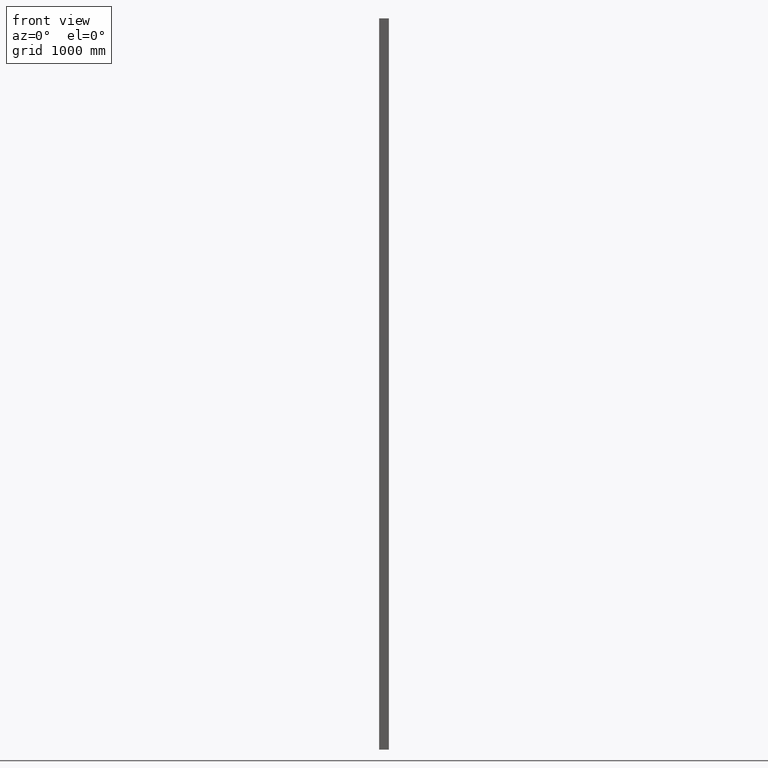
[diagram: clean part render]
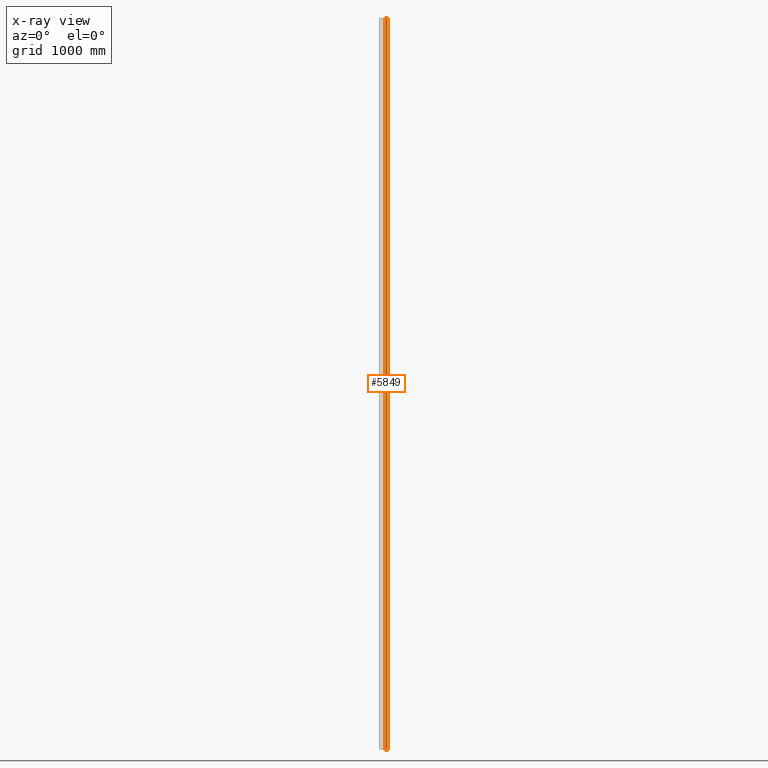
[diagram: x-ray — body ghosted, one internal face saturated and labeled with its STEP entity id]
A machine part, front view, then the same camera in x-ray: the body is ghosted and one INTERNAL B-rep face — a face not visible from any outside direction — is saturated and labeled: STEP entity #5849.
In plain terms, the highlighted cylindrical surface (edge-blend (fillet) strip) has radius 6.85 mm, axis along (0, 0, 1).
Its self-contained STEP definition (entity closure, byte-faithful):
#154 = CARTESIAN_POINT ( 'NONE',  ( 13.14999999999999900, 20.00000000000000000, -6000.000000000000000 ) ) ;
#156 = CARTESIAN_POINT ( 'NONE',  ( 26.85000000000000100, 20.00000000000000000, -6000.000000000000000 ) ) ;
#157 = CARTESIAN_POINT ( 'NONE',  ( 13.14999999999999900, 20.00000000000000000, 0.0000000000000000000 ) ) ;
#159 = CARTESIAN_POINT ( 'NONE',  ( 26.85000000000000100, 20.00000000000000000, 0.0000000000000000000 ) ) ;
#197 = VERTEX_POINT ( 'NONE', #154 ) ;
#199 = VERTEX_POINT ( 'NONE', #156 ) ;
#200 = VERTEX_POINT ( 'NONE', #157 ) ;
#202 = VERTEX_POINT ( 'NONE', #159 ) ;
#275 = ORIENTED_EDGE ( 'NONE', *, *, #4708, .F. ) ;
#276 = ORIENTED_EDGE ( 'NONE', *, *, #4703, .T. ) ;
#277 = ORIENTED_EDGE ( 'NONE', *, *, #5617, .T. ) ;
#572 = EDGE_LOOP ( 'NONE', ( #1052, #277, #276, #275 ) ) ;
#1052 = ORIENTED_EDGE ( 'NONE', *, *, #4691, .T. ) ;
#1582 = CARTESIAN_POINT ( 'NONE',  ( 20.00000000000000000, 20.00000000000000000, 0.0000000000000000000 ) ) ;
#1583 = DIRECTION ( 'NONE',  ( 0.0000000000000000000, 0.0000000000000000000, 1.000000000000000000 ) ) ;
#1584 = DIRECTION ( 'NONE',  ( 1.000000000000000000, 0.0000000000000000000, 0.0000000000000000000 ) ) ;
#1593 = CARTESIAN_POINT ( 'NONE',  ( 26.85000000000000100, 20.00000000000000000, -6000.000000000000000 ) ) ;
#1594 = DIRECTION ( 'NONE',  ( 0.0000000000000000000, 0.0000000000000000000, 1.000000000000000000 ) ) ;
#2489 = LINE ( 'NONE', #4840, #2491 ) ;
#2491 = VECTOR ( 'NONE', #4841, 1000.000000000000000 ) ;
#2972 = CIRCLE ( 'NONE', #4308, 6.850000000000002300 ) ;
#2993 = CIRCLE ( 'NONE', #4305, 6.850000000000002300 ) ;
#3001 = LINE ( 'NONE', #1593, #3002 ) ;
#3002 = VECTOR ( 'NONE', #1594, 1000.000000000000000 ) ;
#4149 = AXIS2_PLACEMENT_3D ( 'NONE', #6097, #6098, #6099 ) ;
#4305 = AXIS2_PLACEMENT_3D ( 'NONE', #1582, #1583, #1584 ) ;
#4308 = AXIS2_PLACEMENT_3D ( 'NONE', #4994, #4995, #4996 ) ;
#4691 = EDGE_CURVE ( 'NONE', #199, #197, #2972, .T. ) ;
#4703 = EDGE_CURVE ( 'NONE', #200, #202, #2993, .T. ) ;
#4708 = EDGE_CURVE ( 'NONE', #199, #202, #3001, .T. ) ;
#4840 = CARTESIAN_POINT ( 'NONE',  ( 13.14999999999999900, 20.00000000000000000, -6000.000000000000000 ) ) ;
#4841 = DIRECTION ( 'NONE',  ( 0.0000000000000000000, 0.0000000000000000000, 1.000000000000000000 ) ) ;
#4994 = CARTESIAN_POINT ( 'NONE',  ( 20.00000000000000000, 20.00000000000000000, -6000.000000000000000 ) ) ;
#4995 = DIRECTION ( 'NONE',  ( -0.0000000000000000000, -0.0000000000000000000, -1.000000000000000000 ) ) ;
#4996 = DIRECTION ( 'NONE',  ( 1.000000000000000000, 0.0000000000000000000, 0.0000000000000000000 ) ) ;
#5122 = FACE_OUTER_BOUND ( 'NONE', #572, .T. ) ;
#5123 = CYLINDRICAL_SURFACE ( 'NONE', #4149, 6.850000000000002300 ) ;
#5617 = EDGE_CURVE ( 'NONE', #197, #200, #2489, .T. ) ;
#5849 = ADVANCED_FACE ( 'NONE', ( #5122 ), #5123, .F. ) ;
#6097 = CARTESIAN_POINT ( 'NONE',  ( 20.00000000000000000, 20.00000000000000000, -6000.000000000000000 ) ) ;
#6098 = DIRECTION ( 'NONE',  ( 0.0000000000000000000, 0.0000000000000000000, 1.000000000000000000 ) ) ;
#6099 = DIRECTION ( 'NONE',  ( 1.000000000000000000, 0.0000000000000000000, 0.0000000000000000000 ) ) ;